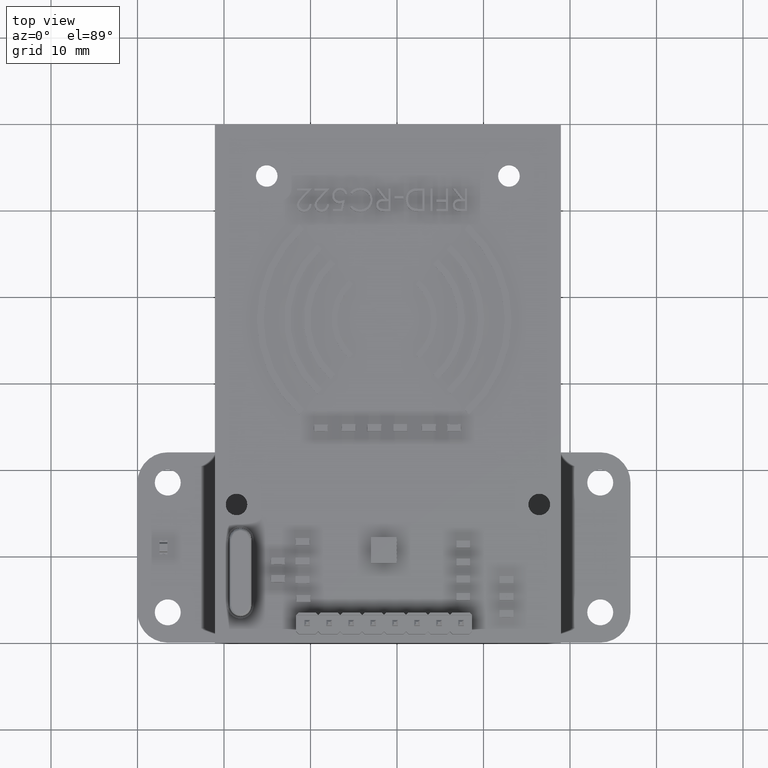
[diagram: clean part render]
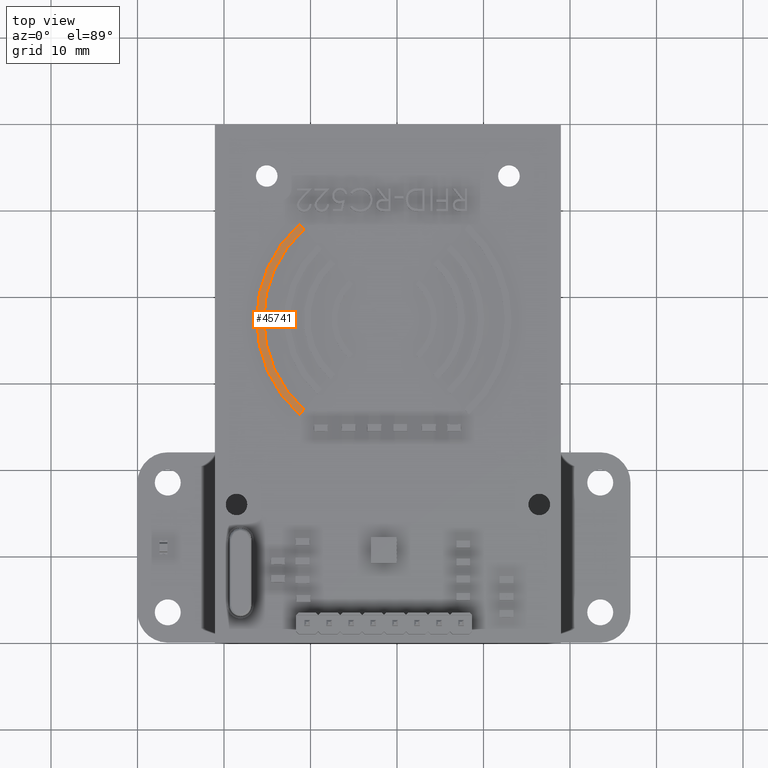
[diagram: same view with one face highlighted and labeled with its STEP entity id]
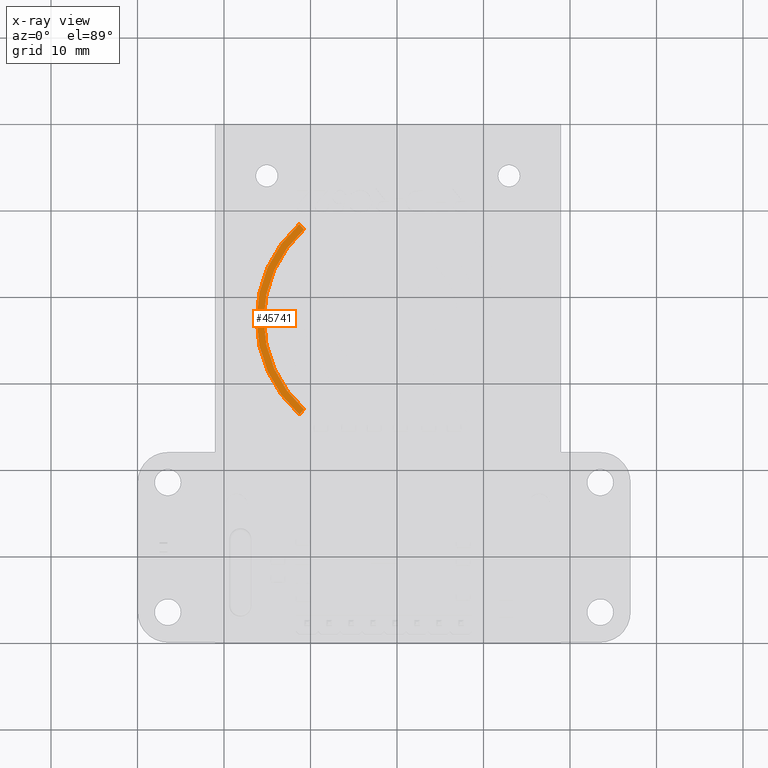
[diagram: x-ray of the same camera — body ghosted, the highlighted face saturated]
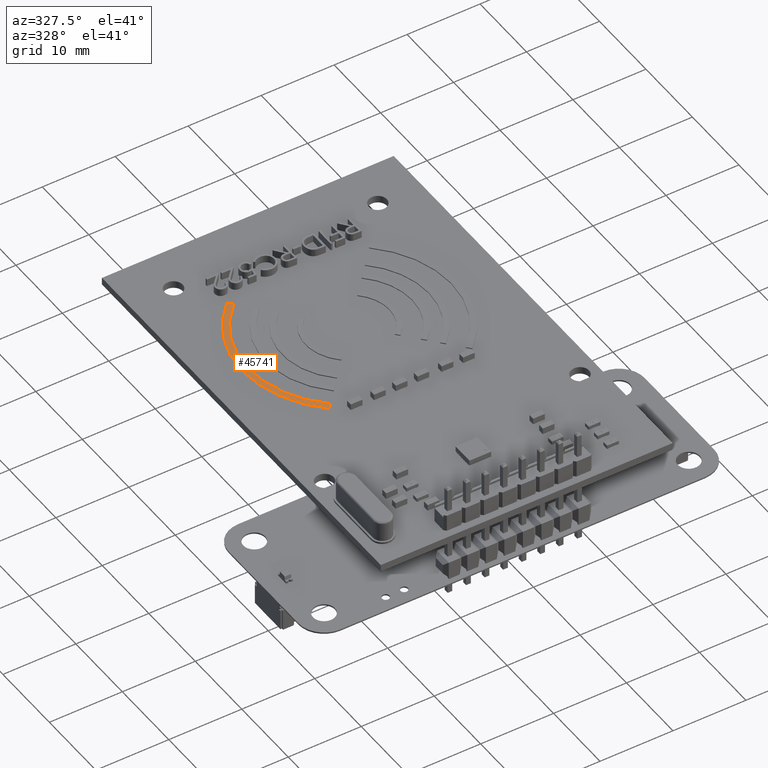
[diagram: same view with one face highlighted and labeled with its STEP entity id]
A machine part, top view. The second image highlights one B-rep face of the part: STEP entity #45741.
The next image is the same camera in x-ray: the body ghosted, the highlighted face saturated — about 0% of this face is hidden behind the body in this view.
A second angle (auxiliary view) of the same face is appended — the face is thin or edge-on in the first view.
In plain terms, the highlighted planar face has unit normal (0, 0, 1).
Its self-contained STEP definition (entity closure, byte-faithful):
#45648 = VERTEX_POINT('',#45649);
#45649 = CARTESIAN_POINT('',(29.695728715976,-27.00776251679,1.1));
#45655 = EDGE_CURVE('',#45656,#45648,#45658,.T.);
#45656 = VERTEX_POINT('',#45657);
#45657 = CARTESIAN_POINT('',(29.695728715976,-47.80763939538,1.1));
#45658 = CIRCLE('',#45659,13.933294865395);
#45659 = AXIS2_PLACEMENT_3D('',#45660,#45661,#45662);
#45660 = CARTESIAN_POINT('',(20.423297197491,-37.40770095608,1.1));
#45661 = DIRECTION('',(-0.,0.,1.));
#45662 = DIRECTION('',(1.,0.,0.));
#45681 = VERTEX_POINT('',#45682);
#45682 = CARTESIAN_POINT('',(30.2343497071,-48.41175549358,1.1));
#45688 = EDGE_CURVE('',#45656,#45681,#45689,.T.);
#45689 = LINE('',#45690,#45691);
#45690 = CARTESIAN_POINT('',(-7.203009649737,-6.422097024329,1.1));
#45691 = VECTOR('',#45692,1.);
#45692 = DIRECTION('',(0.665487352996,-0.74640912575,0.));
#45705 = VERTEX_POINT('',#45706);
#45706 = CARTESIAN_POINT('',(30.2343497071,-26.40364641859,1.1));
#45712 = EDGE_CURVE('',#45681,#45705,#45713,.T.);
#45713 = CIRCLE('',#45714,14.742658091758);
#45714 = AXIS2_PLACEMENT_3D('',#45715,#45716,#45717);
#45715 = CARTESIAN_POINT('',(20.423297197491,-37.40770095608,1.1));
#45716 = DIRECTION('',(-0.,0.,1.));
#45717 = DIRECTION('',(1.,0.,0.));
#45730 = EDGE_CURVE('',#45705,#45648,#45731,.T.);
#45731 = LINE('',#45732,#45733);
#45732 = CARTESIAN_POINT('',(29.959733212296,-26.71165566457,1.1));
#45733 = VECTOR('',#45734,1.);
#45734 = DIRECTION('',(-0.665487352996,-0.74640912575,0.));
#45741 = ADVANCED_FACE('',(#45742),#45748,.T.);
#45742 = FACE_BOUND('',#45743,.T.);
#45743 = EDGE_LOOP('',(#45744,#45745,#45746,#45747));
#45744 = ORIENTED_EDGE('',*,*,#45655,.F.);
#45745 = ORIENTED_EDGE('',*,*,#45688,.T.);
#45746 = ORIENTED_EDGE('',*,*,#45712,.T.);
#45747 = ORIENTED_EDGE('',*,*,#45730,.T.);
#45748 = PLANE('',#45749);
#45749 = AXIS2_PLACEMENT_3D('',#45750,#45751,#45752);
#45750 = CARTESIAN_POINT('',(0.,0.,1.1));
#45751 = DIRECTION('',(-0.,0.,1.));
#45752 = DIRECTION('',(1.,0.,0.));